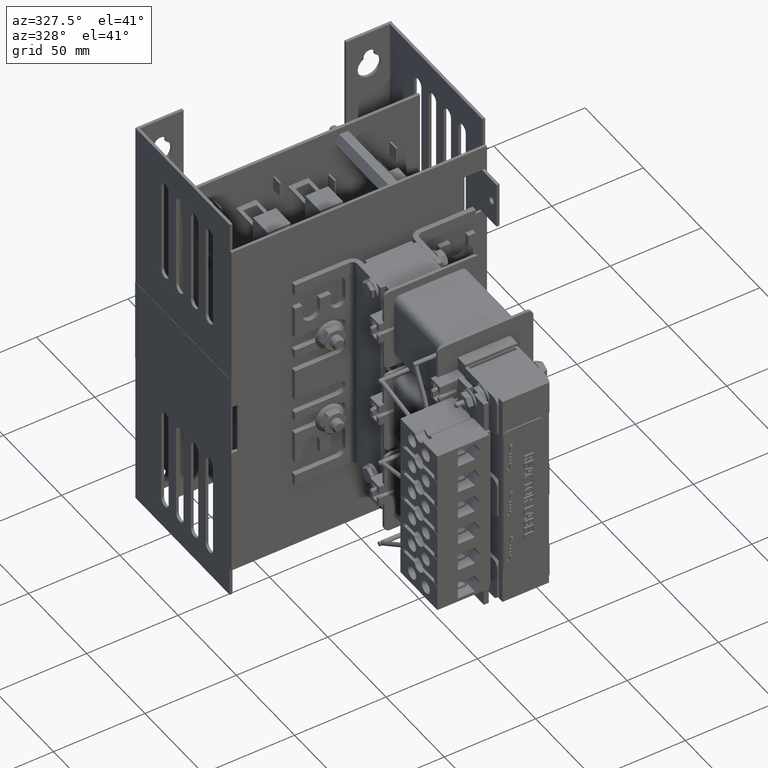
[diagram: clean part render]
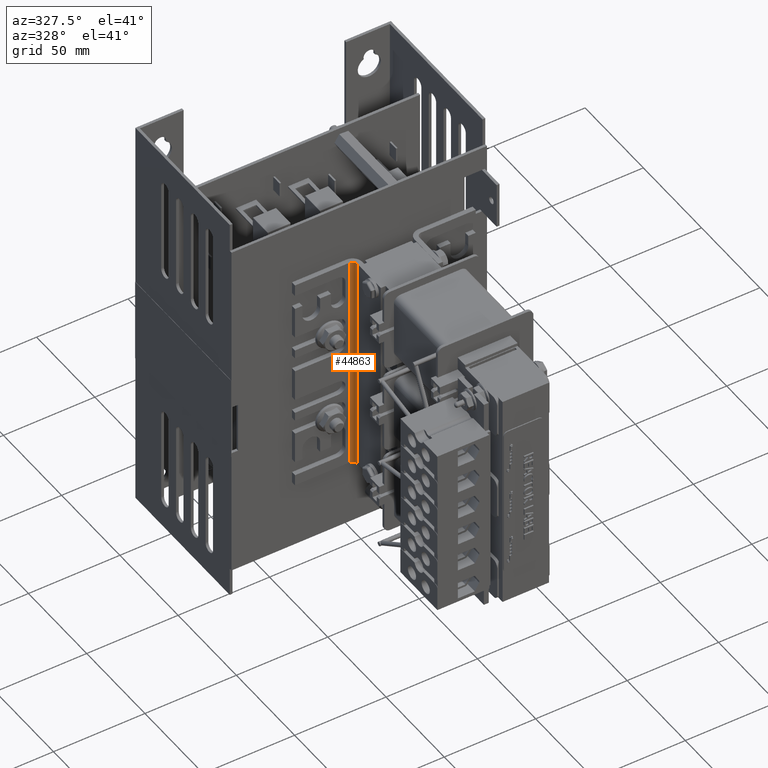
[diagram: same view with one face highlighted and labeled with its STEP entity id]
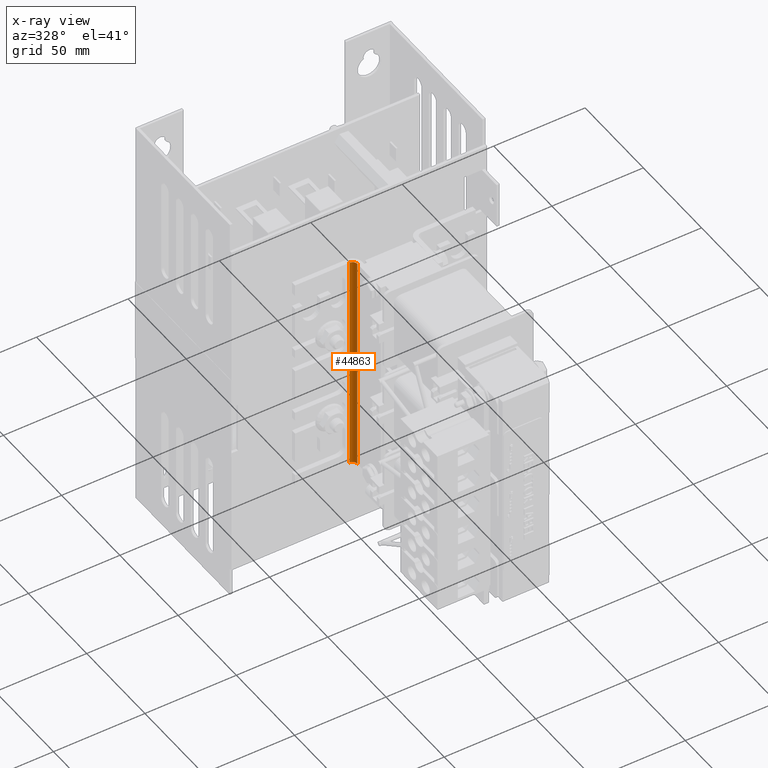
[diagram: x-ray of the same camera — body ghosted, the highlighted face saturated]
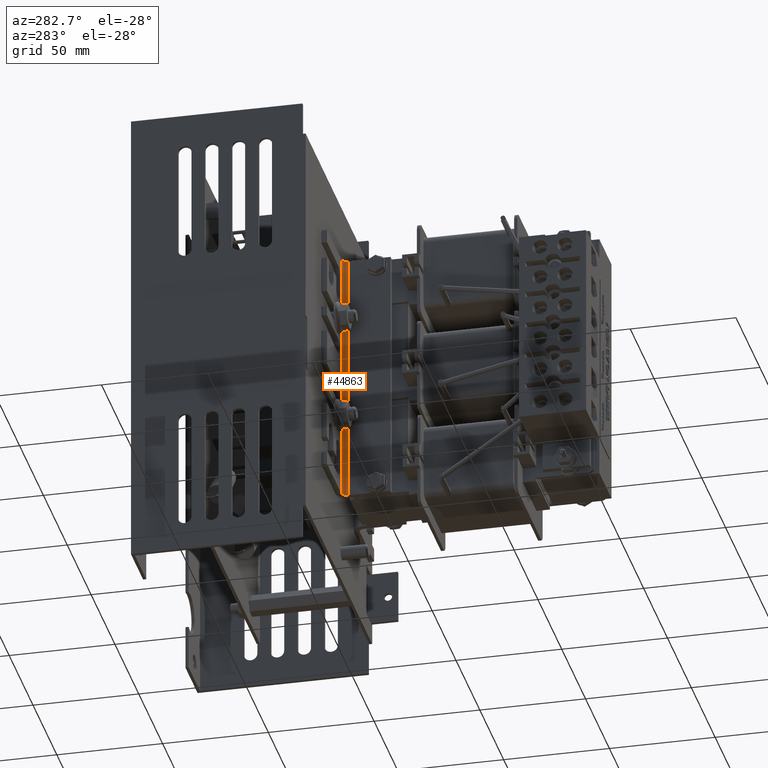
[diagram: same view with one face highlighted and labeled with its STEP entity id]
A machine part, auxiliary view. The second image highlights one B-rep face of the part: STEP entity #44863.
The next image is the same camera in x-ray: the body ghosted, the highlighted face saturated — about 0% of this face is hidden behind the body in this view.
A second angle (auxiliary view) of the same face is appended — the face is thin or edge-on in the first view.
In plain terms, the highlighted cylindrical surface (edge-blend (fillet) strip) has radius 2.6568 mm, axis along (-0, 0, -1).
Its self-contained STEP definition (entity closure, byte-faithful):
#3737=CYLINDRICAL_SURFACE('',#48357,0.1046);
#4675=FACE_OUTER_BOUND('',#7273,.T.);
#7273=EDGE_LOOP('',(#33575,#33576,#33577,#33578));
#10351=LINE('',#66180,#15086);
#10362=LINE('',#66205,#15097);
#15086=VECTOR('',#53735,0.393700787401575);
#15097=VECTOR('',#53760,0.393700787401575);
#19317=CIRCLE('',#48349,0.1046);
#19318=CIRCLE('',#48352,0.1046);
#21086=VERTEX_POINT('',#66162);
#21093=VERTEX_POINT('',#66175);
#21094=VERTEX_POINT('',#66179);
#21098=VERTEX_POINT('',#66189);
#25836=EDGE_CURVE('',#21093,#21086,#19317,.T.);
#25837=EDGE_CURVE('',#21094,#21086,#10351,.T.);
#25842=EDGE_CURVE('',#21098,#21094,#19318,.T.);
#25850=EDGE_CURVE('',#21098,#21093,#10362,.T.);
#33575=ORIENTED_EDGE('',*,*,#25837,.T.);
#33576=ORIENTED_EDGE('',*,*,#25836,.F.);
#33577=ORIENTED_EDGE('',*,*,#25850,.F.);
#33578=ORIENTED_EDGE('',*,*,#25842,.T.);
#44863=ADVANCED_FACE('',(#4675),#3737,.F.);
#48349=AXIS2_PLACEMENT_3D('',#66177,#53731,#53732);
#48352=AXIS2_PLACEMENT_3D('',#66190,#53742,#53743);
#48357=AXIS2_PLACEMENT_3D('',#66204,#53758,#53759);
#53731=DIRECTION('center_axis',(1.,0.,0.));
#53732=DIRECTION('ref_axis',(0.,0.,-1.));
#53735=DIRECTION('',(-1.,0.,0.));
#53742=DIRECTION('center_axis',(1.,0.,0.));
#53743=DIRECTION('ref_axis',(0.,0.,-1.));
#53758=DIRECTION('center_axis',(1.,0.,0.));
#53759=DIRECTION('ref_axis',(0.,0.,-1.));
#53760=DIRECTION('',(-1.,0.,0.));
#66162=CARTESIAN_POINT('',(3.22380923968845,9.41635412609843,0.2092));
#66175=CARTESIAN_POINT('',(3.22380923968845,9.31175412609843,0.1046));
#66177=CARTESIAN_POINT('Origin',(3.22380923968845,9.31175412609843,0.2092));
#66179=CARTESIAN_POINT('',(8.03380923968846,9.41635412609843,0.2092));
#66180=CARTESIAN_POINT('',(3.22380923968845,9.41635412609843,0.2092));
#66189=CARTESIAN_POINT('',(8.03380923968846,9.31175412609843,0.1046));
#66190=CARTESIAN_POINT('Origin',(8.03380923968846,9.31175412609843,0.2092));
#66204=CARTESIAN_POINT('Origin',(5.62880923968846,9.31175412609843,0.2092));
#66205=CARTESIAN_POINT('',(6.83366821323611,9.31175412609842,0.1046));